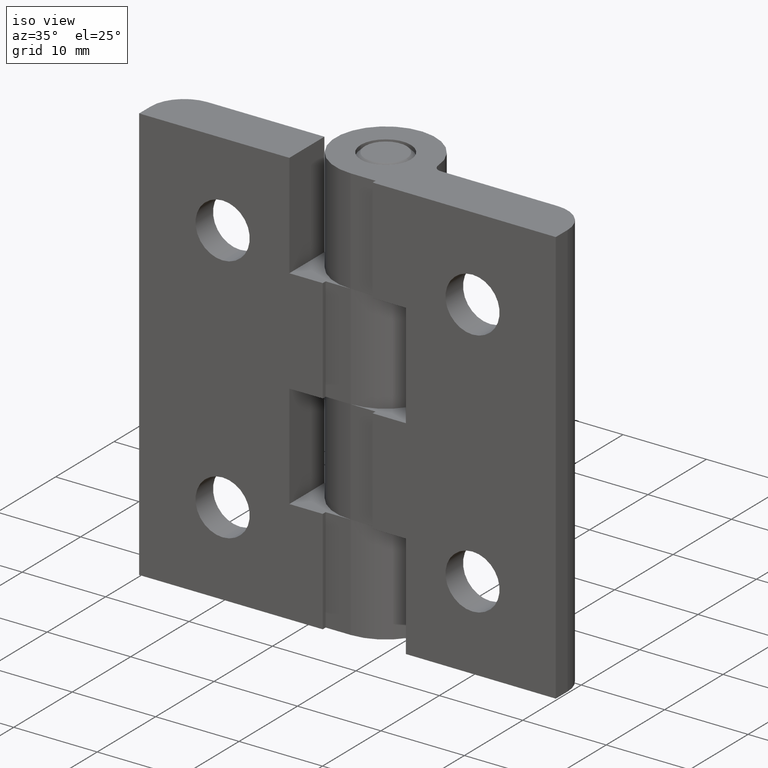
[diagram: clean part render]
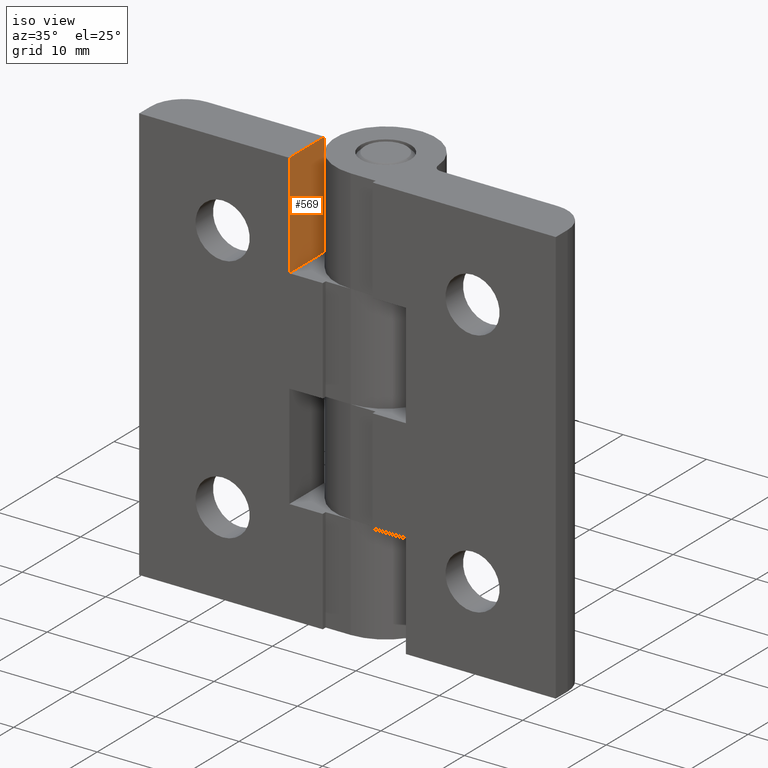
[diagram: same view with one face highlighted and labeled with its STEP entity id]
A machine part, iso view. The second image highlights one B-rep face of the part: STEP entity #569.
In plain terms, the highlighted planar face has unit normal (1, 0, 0).
Its self-contained STEP definition (entity closure, byte-faithful):
#34=LINE('',#846,#77);
#44=LINE('',#869,#87);
#65=LINE('',#926,#108);
#74=LINE('',#953,#117);
#77=VECTOR('',#665,12.5);
#87=VECTOR('',#679,12.5);
#108=VECTOR('',#734,6.);
#117=VECTOR('',#765,6.);
#133=PLANE('',#626);
#185=FACE_OUTER_BOUND('',#231,.T.);
#231=EDGE_LOOP('',(#519,#520,#521,#522));
#274=VERTEX_POINT('',#844);
#275=VERTEX_POINT('',#845);
#285=VERTEX_POINT('',#867);
#286=VERTEX_POINT('',#868);
#326=EDGE_CURVE('',#274,#275,#34,.T.);
#337=EDGE_CURVE('',#285,#286,#44,.T.);
#367=EDGE_CURVE('',#285,#275,#65,.T.);
#381=EDGE_CURVE('',#274,#286,#74,.T.);
#519=ORIENTED_EDGE('',*,*,#337,.T.);
#520=ORIENTED_EDGE('',*,*,#381,.F.);
#521=ORIENTED_EDGE('',*,*,#326,.T.);
#522=ORIENTED_EDGE('',*,*,#367,.F.);
#569=ADVANCED_FACE('',(#185),#133,.T.);
#626=AXIS2_PLACEMENT_3D('',#964,#782,#783);
#665=DIRECTION('',(0.,0.,-1.));
#679=DIRECTION('',(0.,0.,1.));
#734=DIRECTION('',(0.,-1.,0.));
#765=DIRECTION('',(0.,1.,0.));
#782=DIRECTION('center_axis',(1.,0.,0.));
#783=DIRECTION('ref_axis',(0.,0.,-1.));
#844=CARTESIAN_POINT('',(-7.,0.,25.));
#845=CARTESIAN_POINT('',(-7.,0.,12.5));
#846=CARTESIAN_POINT('',(-7.,0.,25.));
#867=CARTESIAN_POINT('',(-7.,6.,12.5));
#868=CARTESIAN_POINT('',(-7.,6.,25.));
#869=CARTESIAN_POINT('',(-7.,6.,25.));
#926=CARTESIAN_POINT('',(-7.,6.5,12.5));
#953=CARTESIAN_POINT('',(-7.,2.,25.));
#964=CARTESIAN_POINT('Origin',(-7.,6.5,25.));